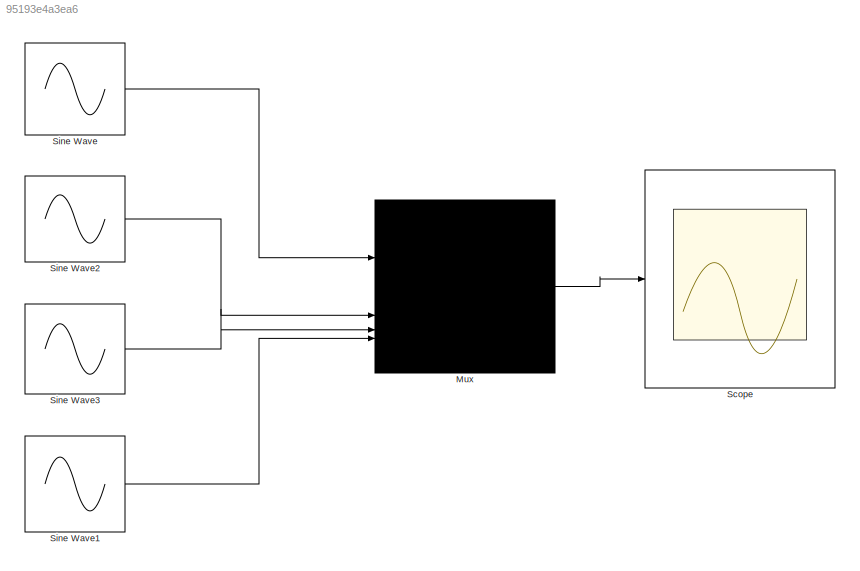
MODEL slx_95193e4a3ea6
KIND model
CONFIG AbsTol = auto
CONFIG EnableMultiTasking = off
CONFIG FixedStep = auto
CONFIG MaxStep = auto
CONFIG MinStep = auto
CONFIG RelTol = 1e-3
CONFIG SampleTimeConstraint = Unconstrained
CONFIG SolverName = VariableStepAuto
CONFIG StartTime = 0.0
CONFIG StopTime = 0.1
BLOCK [Mux] Mux
  DisplayOption = bar
BLOCK [Scope] Scope
  Floating = off
  NumInputPorts = 1
  ScopeSpecificationString = Simulink.scopes.TimeScopeBlockCfg('CurrentConfiguration', extmgr.ConfigurationSet(extmgr.Configuration('Core','General UI',true),extmgr.Configuration('Core','Source UI',true),extmgr.Configuration('Sources','WiredSimulink',true),extmgr.Configuration('Visuals','Time Domain',true,'SerializedDisplays',{struct('MinYLimReal','-1.25','MaxYLimReal','1.25','YLabelReal','','MinYLimMag','0.00000','MaxYLimMag...<+1380ch>
BLOCK [Sin] Sine Wave
  Frequency = 2*pi*50
  SampleTime = 0.0001
BLOCK [Sin] Sine Wave1
  Frequency = 2*pi*50
  Phase = 1.5 * pi
  SampleTime = 0.0001
BLOCK [Sin] Sine Wave2
  Frequency = 2*pi*50
  Phase = pi/2
  SampleTime = 0.0001
BLOCK [Sin] Sine Wave3
  Frequency = 2*pi*50
  Phase = pi
  SampleTime = 0.0001
LINE Mux:1 -> Scope:1
LINE Sine Wave1:1 -> Mux:4
LINE Sine Wave2:1 -> Mux:2
LINE Sine Wave3:1 -> Mux:3
LINE Sine Wave:1 -> Mux:1
